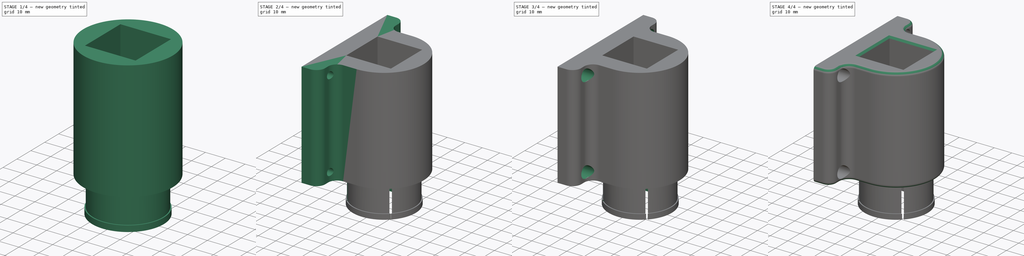
[diagram: build sequence overview — one tinted view per stage of 4, left to right]
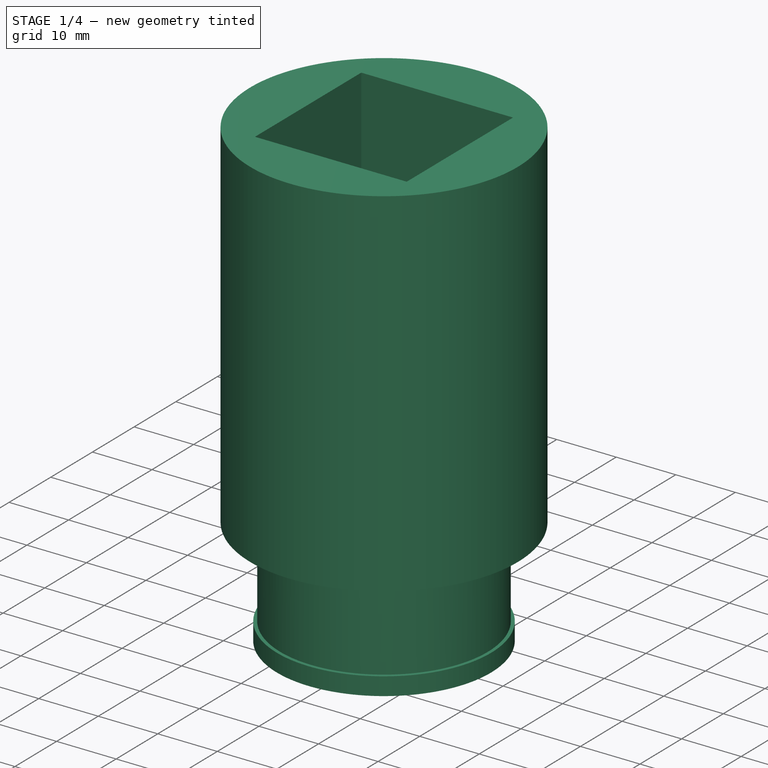
[diagram: stage 1 of 4 — iso view after this stage's code; geometry added in this stage tinted green]
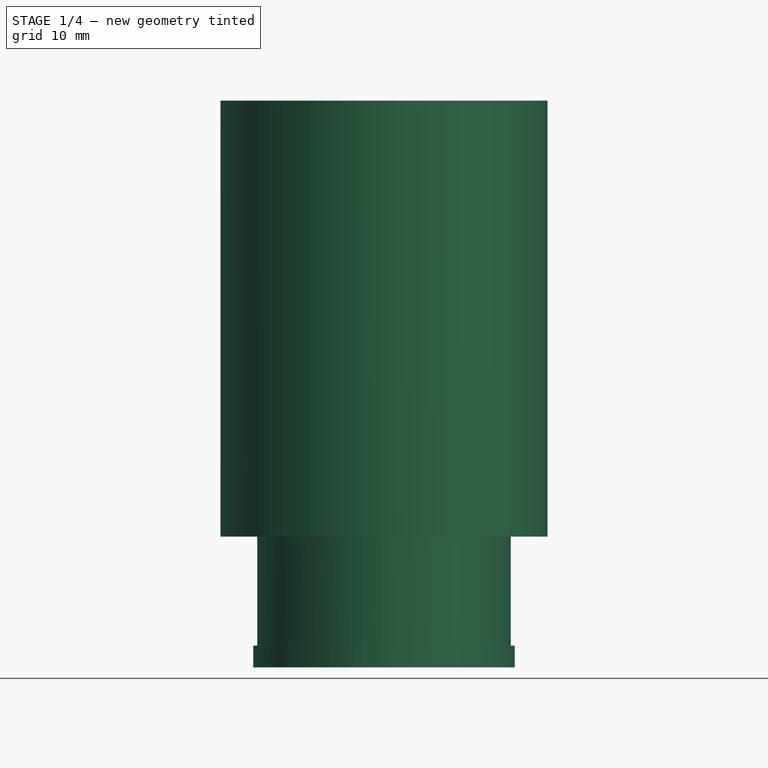
[diagram: stage 1 of 4 — front view after this stage's code; geometry added in this stage tinted green]
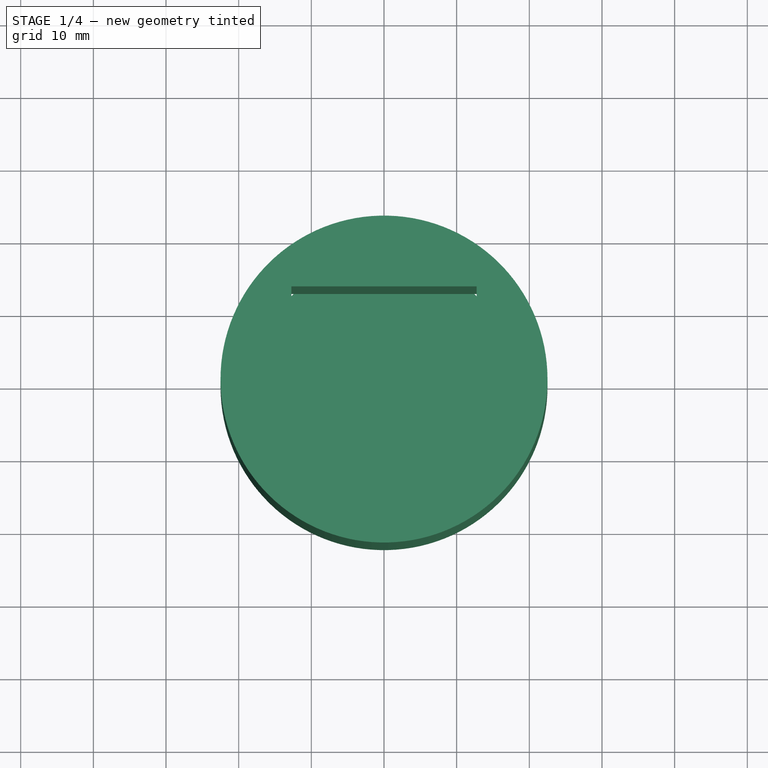
[diagram: stage 1 of 4 — top view after this stage's code; geometry added in this stage tinted green]
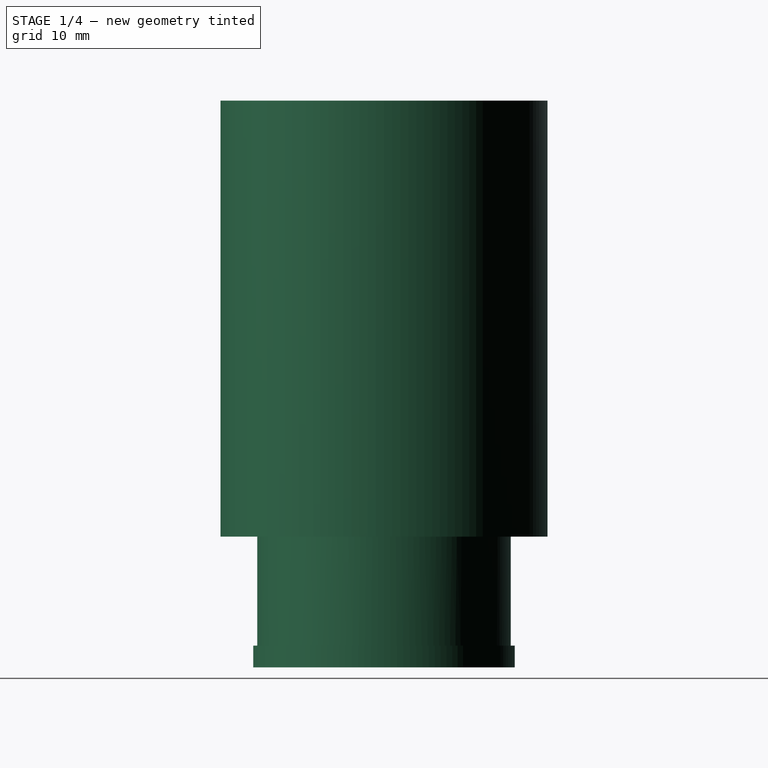
[diagram: stage 1 of 4 — right view after this stage's code; geometry added in this stage tinted green]
FCSTD DOCUMENT  (FreeCAD 0.20R29603 (Git))
Label: Deichselstütze 2.0 Stützenklemme
License: All rights reserved
LicenseURL: http://en.wikipedia.org/wiki/All_rights_reserved
objects: Sketcher::SketchObject×8, PartDesign::Pad×4, PartDesign::Pocket×3, PartDesign::Hole×2, PartDesign::Fillet×2, PartDesign::Chamfer×1, PartDesign::Body×1
note: 33 computed .brp shape members not serialized (recipe doc carries the construction recipe); baked Part::Feature solids carry a one-line shape summary decoded from their .brp

FEATURE [Sketcher::SketchObject] Sketch
  FullyConstrained = true
  MapMode = 5
  Support = -> [XY_Plane]
  sketch-geometry (6):
    g0: Circle CenterX=0 CenterY=0 CenterZ=0 NormalX=0 NormalY=0 NormalZ=1 AngleXU=0 Radius=22.5
    g1: LineSegment StartX=-12.75 StartY=12.75 StartZ=0 EndX=-12.75 EndY=-12.75 EndZ=0
    g2: LineSegment StartX=-12.75 StartY=-12.75 StartZ=0 EndX=12.75 EndY=-12.75 EndZ=0
    g3: LineSegment StartX=12.75 StartY=-12.75 StartZ=0 EndX=12.75 EndY=12.75 EndZ=0
    g4: LineSegment StartX=12.75 StartY=12.75 StartZ=0 EndX=-12.75 EndY=12.75 EndZ=0
    g5: GeomPoint X=0 Y=0 Z=0
  constraints (14):
    c: Coincident(g0,g-1)
    c: Coincident(g1,g2)
    c: Coincident(g2,g3)
    c: Coincident(g3,g4)
    c: Coincident(g4,g1)
    c: Horizontal(g2)
    c: Horizontal(g4)
    c: Vertical(g1)
    c: Vertical(g3)
    c: Symmetric(g2,g1,g5)
    c: Coincident(g5,g0)
    c: Distance(g3) = 25.5
    c: Equal(g3,g2)
    c: Diameter(g0) = 45
FEATURE [PartDesign::Pad] Pad
  Direction = (0,0,1)
  Length = 60
  Length2 = 10
  Profile = -> Sketch
  ReferenceAxis = -> Sketch [N_Axis]
  Type = 0
FEATURE [Sketcher::SketchObject] Sketch001
  FullyConstrained = true
  MapMode = 5
  Placement = pos=(0,0,0) rot=(1,0,0;3.14159rad)
  Support = -> [Pad]
  sketch-geometry (1):
    g0: Circle CenterX=0 CenterY=0 CenterZ=0 NormalX=0 NormalY=0 NormalZ=1 AngleXU=0 Radius=17.45
  constraints (2):
    c: Coincident(g0,g-1)
    c: Diameter(g0) = 34.9
FEATURE [PartDesign::Pad] Pad001
  BaseFeature = -> Pad
  Direction = (0,0,-1)
  Length = 15
  Length2 = 10
  Profile = -> Sketch001
  ReferenceAxis = -> Sketch001 [N_Axis]
  Type = 0
FEATURE [Sketcher::SketchObject] Sketch002
  FullyConstrained = true
  MapMode = 5
  Placement = pos=(0,0,-15) rot=(1,0,0;3.14159rad)
  Support = -> [Pad001]
  sketch-geometry (1):
    g0: Circle CenterX=0 CenterY=0 CenterZ=0 NormalX=0 NormalY=0 NormalZ=1 AngleXU=0 Radius=18
  constraints (2):
    c: Coincident(g0,g-1)
    c: Diameter(g0) = 36
FEATURE [PartDesign::Pad] Pad002
  BaseFeature = -> Pad001
  Direction = (0,0,-1)
  Length = 3
  Length2 = 10
  Profile = -> Sketch002
  ReferenceAxis = -> Sketch002 [N_Axis]
  Type = 0
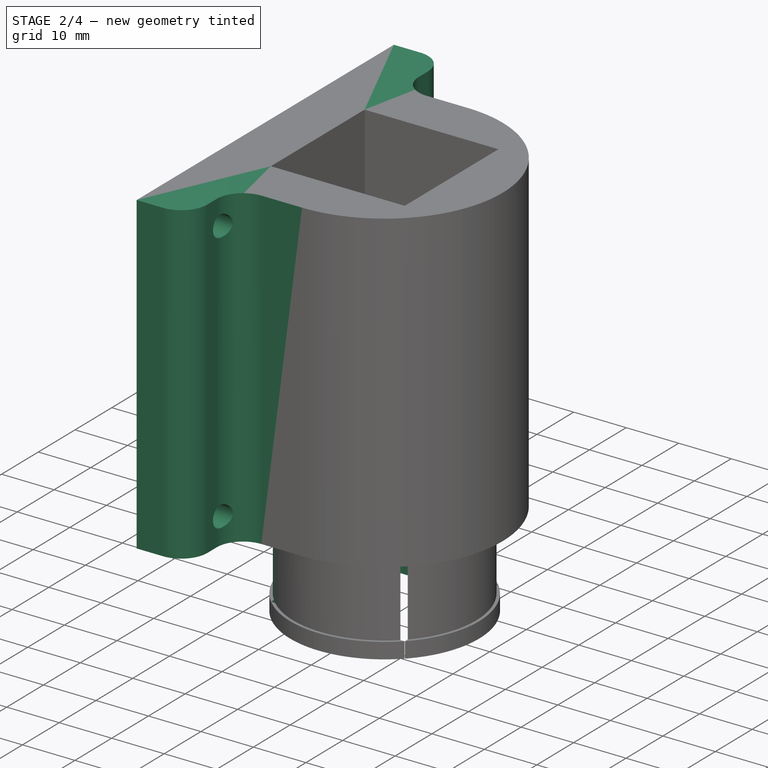
[diagram: stage 2 of 4 — iso view after this stage's code; geometry added in this stage tinted green]
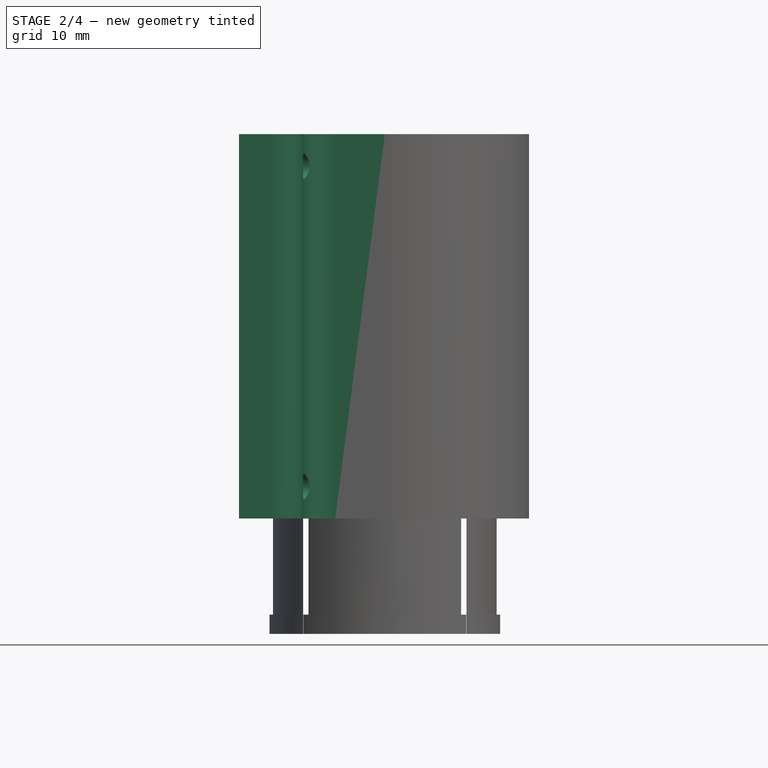
[diagram: stage 2 of 4 — front view after this stage's code; geometry added in this stage tinted green]
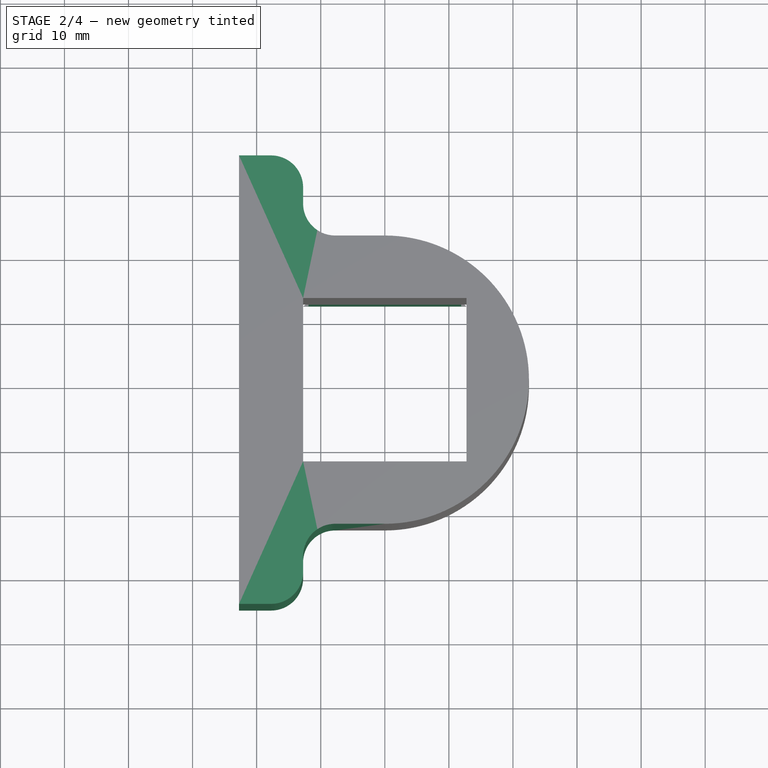
[diagram: stage 2 of 4 — top view after this stage's code; geometry added in this stage tinted green]
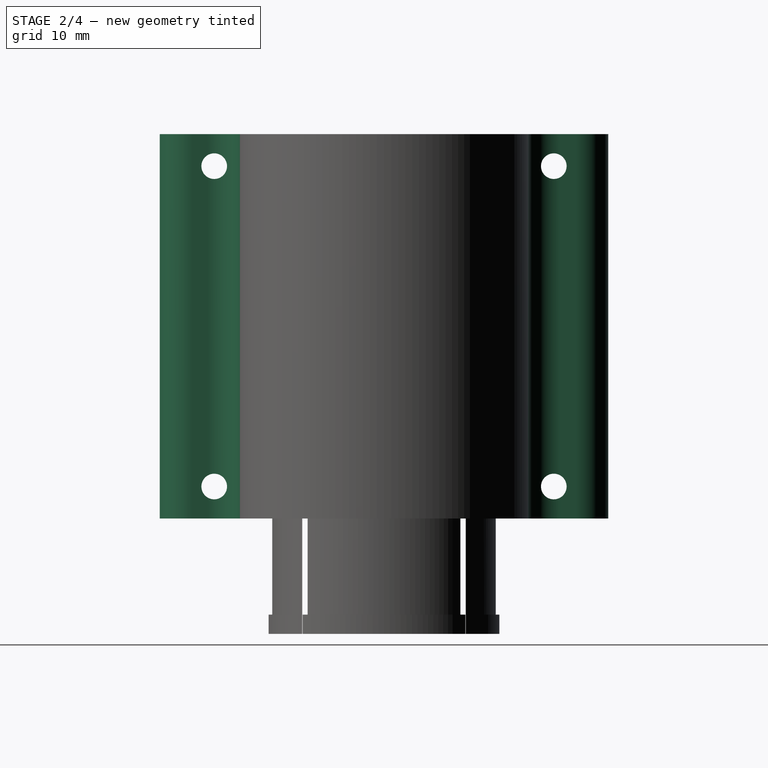
[diagram: stage 2 of 4 — right view after this stage's code; geometry added in this stage tinted green]
FEATURE [Sketcher::SketchObject] Sketch003
  ExternalGeometry = -> [Pad002]
  FullyConstrained = true
  MapMode = 5
  Placement = pos=(0,0,-18) rot=(1,0,0;3.14159rad)
  Support = -> [Pad002]
  sketch-geometry (5):
    g0: LineSegment StartX=-12.75 StartY=12.75 StartZ=0 EndX=-12.75 EndY=-12.75 EndZ=0
    g1: LineSegment StartX=-12.75 StartY=-12.75 StartZ=0 EndX=12.75 EndY=-12.75 EndZ=0
    g2: LineSegment StartX=12.75 StartY=-12.75 StartZ=0 EndX=12.75 EndY=12.75 EndZ=0
    g3: LineSegment StartX=12.75 StartY=12.75 StartZ=0 EndX=-12.75 EndY=12.75 EndZ=0
    g4: GeomPoint X=0 Y=0 Z=0
  constraints (12):
    c: Coincident(g0,g1)
    c: Coincident(g1,g2)
    c: Coincident(g2,g3)
    c: Coincident(g3,g0)
    c: Horizontal(g1)
    c: Horizontal(g3)
    c: Vertical(g0)
    c: Vertical(g2)
    c: Symmetric(g1,g0,g4)
    c: Coincident(g4,g-1)
    c: Distance(g2) = 25.5
    c: Equal(g1,g2)
FEATURE [PartDesign::Pocket] Pocket
  BaseFeature = -> Pad002
  Direction = (0,0,1)
  Length = 5
  Length2 = 5
  Profile = -> Sketch003
  ReferenceAxis = -> Sketch003 [N_Axis]
  Type = 1
FEATURE [Sketcher::SketchObject] Sketch005
  FullyConstrained = true
  MapMode = 5
  Placement = pos=(0,0,60) rot=(0,0,1;0rad)
  sketch-geometry (20):
    g0: LineSegment StartX=0 StartY=12.75 StartZ=0 EndX=0 EndY=22.5 EndZ=0
    g1: LineSegment StartX=0 StartY=22.5 StartZ=0 EndX=-7.75 EndY=22.5 EndZ=0
    g2: LineSegment StartX=-12.75 StartY=27.5 StartZ=0 EndX=-12.75 EndY=30 EndZ=0
    g3: LineSegment StartX=-17.75 StartY=35 StartZ=0 EndX=-22.75 EndY=35 EndZ=0
    g4: LineSegment StartX=-22.75 StartY=35 StartZ=0 EndX=-22.75 EndY=-35 EndZ=0
    g5: LineSegment StartX=-22.75 StartY=-35 StartZ=0 EndX=-17.75 EndY=-35 EndZ=0
    g6: LineSegment StartX=-12.75 StartY=-30 StartZ=0 EndX=-12.75 EndY=-27.5 EndZ=0
    g7: LineSegment StartX=-7.75 StartY=-22.5 StartZ=0 EndX=0 EndY=-22.5 EndZ=0
    g8: LineSegment StartX=0 StartY=-22.5 StartZ=0 EndX=0 EndY=-12.75 EndZ=0
    g9: LineSegment StartX=0 StartY=-12.75 StartZ=0 EndX=-12.75 EndY=-12.75 EndZ=0
    g10: LineSegment StartX=-12.75 StartY=-12.75 StartZ=0 EndX=-12.75 EndY=12.75 EndZ=0
    g11: LineSegment StartX=-12.75 StartY=12.75 StartZ=0 EndX=0 EndY=12.75 EndZ=0
    g12: ArcOfCircle CenterX=-7.75 CenterY=27.5 CenterZ=0 NormalX=0 NormalY=0 NormalZ=1 AngleXU=0 Radius=5 StartAngle=3.14159 EndAngle=4.71239
    g13: GeomPoint X=-12.75 Y=22.5 Z=0
    g14: ArcOfCircle CenterX=-7.75 CenterY=-27.5 CenterZ=0 NormalX=0 NormalY=0 NormalZ=1 AngleXU=0 Radius=5 StartAngle=1.5708 EndAngle=3.14159
    g15: GeomPoint X=-12.75 Y=-22.5 Z=0
    g16: ArcOfCircle CenterX=-17.75 CenterY=-30 CenterZ=0 NormalX=0 NormalY=0 NormalZ=1 AngleXU=0 Radius=5 StartAngle=4.71239 EndAngle=6.28319
    g17: GeomPoint X=-12.75 Y=-35 Z=0
    g18: ArcOfCircle CenterX=-17.75 CenterY=30 CenterZ=0 NormalX=0 NormalY=0 NormalZ=1 AngleXU=0 Radius=5 StartAngle=3e-16 EndAngle=1.5708
    g19: GeomPoint X=-12.75 Y=35 Z=0
  constraints (49):
    c: PointOnObject(g0,g-2)
    c: PointOnObject(g0,g-2)
    c: Coincident(g0,g1)
    c: Horizontal(g1)
    c: Horizontal(g3)
    c: Coincident(g3,g4)
    c: Coincident(g4,g5)
    c: Horizontal(g5)
    c: Coincident(g7,g8)
    c: Vertical(g8)
    c: Coincident(g8,g9)
    c: Horizontal(g9)
    c: Coincident(g9,g10)
    c: Coincident(g10,g11)
    c: Coincident(g11,g0)
    c: Horizontal(g11)
    c: Parallel(g7,g1)
    c: Distance(g7,g15) = 12.75
    c: Parallel(g2,g4)
    c: Parallel(g4,g6)
    c: Symmetric(g3,g4,g-1)
    c: Distance(g4) = 70
    c: PointOnObject(g13,g1)
    c: PointOnObject(g13,g2)
    c: Tangent(g1,g12) = 1.5708
    c: Tangent(g2,g12) = 1.5708
    c: PointOnObject(g15,g6)
    c: PointOnObject(g15,g7)
    c: Tangent(g6,g14) = 1.5708
    c: Tangent(g7,g14) = 1.5708
    c: PointOnObject(g17,g5)
    c: PointOnObject(g17,g6)
    c: Tangent(g5,g16) = -1.5708
    c: Tangent(g6,g16) = -1.5708
    c: PointOnObject(g19,g2)
    c: PointOnObject(g19,g3)
    c: Tangent(g2,g18) = -1.5708
    c: Tangent(g3,g18) = -1.5708
    c: Equal(g12,g14)
    c: Radius(g12) = 5
    c: Equal(g18,g16)
    c: Radius(g18) = 5
    c: Equal(g7,g1)
    c: Distance(g10) = 25.5
    c: Distance(g9) = 12.75
    c: Symmetric(g9,g10,g-1)
    c: Distance(g9,g4) = 10
    c: Distance(g0) = 9.75
    c: Symmetric(g7,g0,g-1)
FEATURE [PartDesign::Pad] Pad003
  BaseFeature = -> Pocket
  Direction = (0,0,1)
  Length = 60
  Length2 = 10
  Profile = -> Sketch005
  ReferenceAxis = -> Sketch005 [N_Axis]
  Reversed = true
  Type = 0
FEATURE [Sketcher::SketchObject] Sketch006
  ExternalGeometry = -> [Pad003]
  FullyConstrained = true
  MapMode = 5
  Placement = pos=(-22.75,0,0) rot=(0.57735,-0.57735,-0.57735;2.0944rad)
  Support = -> [Pad003]
  sketch-geometry (4):
    g0: Circle CenterX=-26.5 CenterY=55 CenterZ=0 NormalX=0 NormalY=0 NormalZ=1 AngleXU=0 Radius=2
    g1: Circle CenterX=26.5 CenterY=55 CenterZ=0 NormalX=0 NormalY=0 NormalZ=1 AngleXU=0 Radius=2
    g2: Circle CenterX=26.5 CenterY=5 CenterZ=0 NormalX=0 NormalY=0 NormalZ=1 AngleXU=0 Radius=2
    g3: Circle CenterX=-26.5 CenterY=5 CenterZ=0 NormalX=0 NormalY=0 NormalZ=1 AngleXU=0 Radius=2
  constraints (10):
    c: Symmetric(g3,g2,g-2)
    c: Symmetric(g0,g1,g-2)
    c: Distance(g0,g-3) = 8.5
    c: Distance(g3,g-3) = 8.5
    c: Distance(g3,g-5) = 5
    c: Distance(g0,g-4) = 5
    c: Equal(g2,g3)
    c: Equal(g3,g1)
    c: Equal(g1,g0)
    c: Diameter(g1) = 4
FEATURE [PartDesign::Pocket] Pocket001
  BaseFeature = -> Pad003
  Direction = (1,0,0)
  Length = 5
  Length2 = 5
  Profile = -> Sketch006
  ReferenceAxis = -> Sketch006 [N_Axis]
  Refine = true
  Type = 1
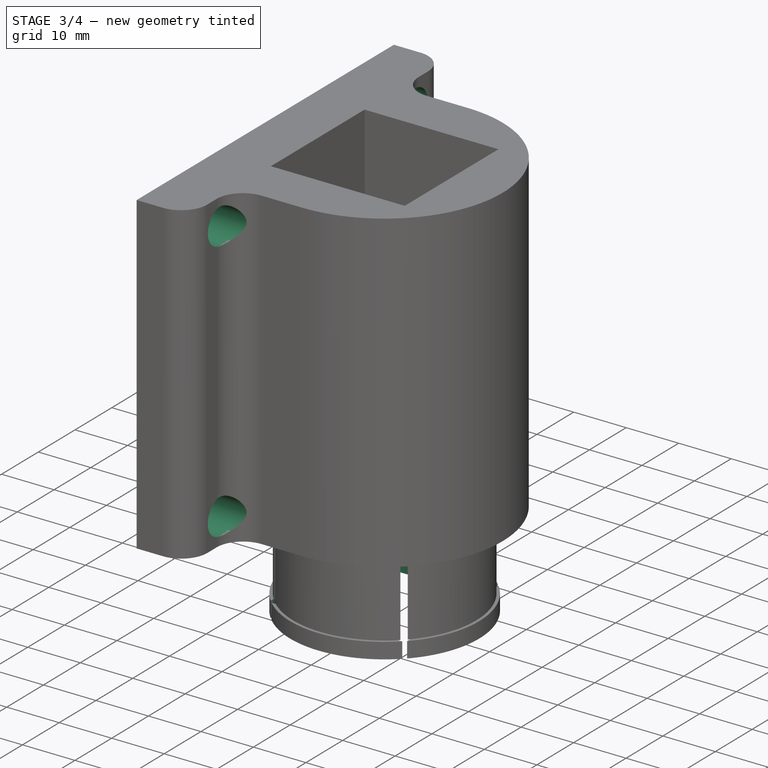
[diagram: stage 3 of 4 — iso view after this stage's code; geometry added in this stage tinted green]
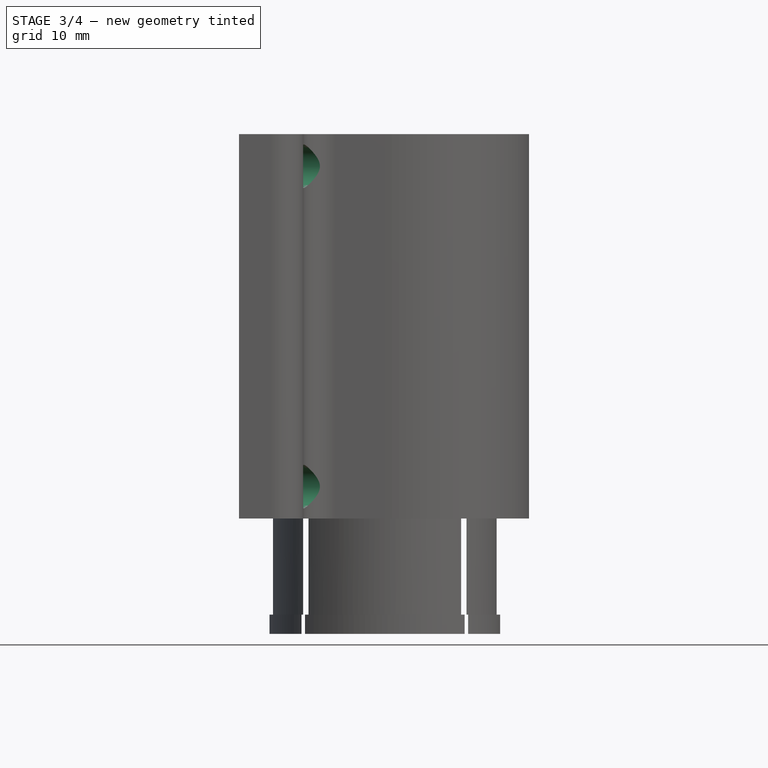
[diagram: stage 3 of 4 — front view after this stage's code; geometry added in this stage tinted green]
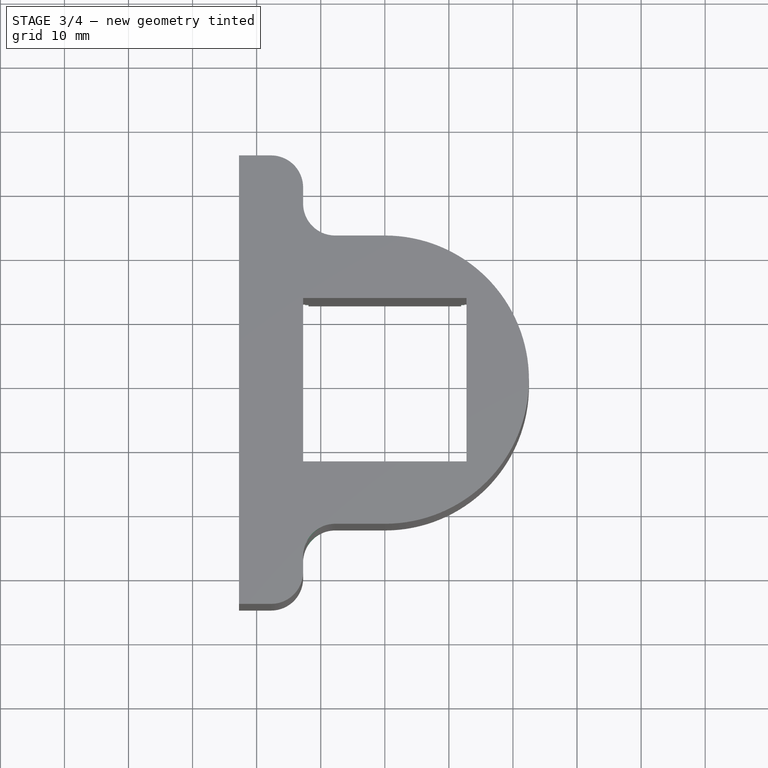
[diagram: stage 3 of 4 — top view after this stage's code; geometry added in this stage tinted green]
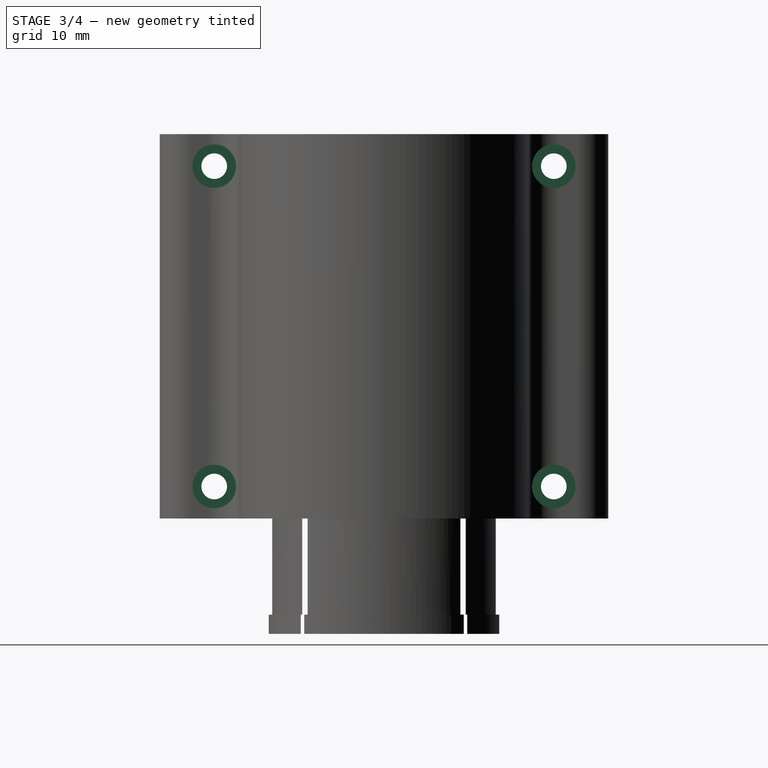
[diagram: stage 3 of 4 — right view after this stage's code; geometry added in this stage tinted green]
FEATURE [Sketcher::SketchObject] Sketch007
  FullyConstrained = true
  MapMode = 5
  Placement = pos=(-12.75,1.81e-14,0) rot=(0.57735,0.57735,0.57735;2.0944rad)
  Support = -> [Pocket001]
  sketch-geometry (8):
    g0: LineSegment StartX=-35 StartY=60 StartZ=0 EndX=35 EndY=60 EndZ=0
    g1: LineSegment StartX=35 StartY=60 StartZ=0 EndX=35 EndY=0 EndZ=0
    g2: LineSegment StartX=35 StartY=0 StartZ=0 EndX=-35 EndY=0 EndZ=0
    g3: LineSegment StartX=-35 StartY=0 StartZ=0 EndX=-35 EndY=60 EndZ=0
    g4: Circle CenterX=-26.5 CenterY=55 CenterZ=0 NormalX=0 NormalY=0 NormalZ=1 AngleXU=0 Radius=4.3
    g5: Circle CenterX=-26.5 CenterY=5 CenterZ=0 NormalX=0 NormalY=0 NormalZ=1 AngleXU=0 Radius=4.3
    g6: Circle CenterX=26.5 CenterY=5 CenterZ=0 NormalX=0 NormalY=0 NormalZ=1 AngleXU=0 Radius=4.3
    g7: Circle CenterX=26.5 CenterY=55 CenterZ=0 NormalX=0 NormalY=0 NormalZ=1 AngleXU=0 Radius=4.3
  constraints (21):
    c: Coincident(g0,g1)
    c: Coincident(g1,g2)
    c: Coincident(g2,g3)
    c: Coincident(g3,g0)
    c: Horizontal(g2)
    c: Vertical(g1)
    c: Vertical(g3)
    c: PointOnObject(g1,g-1)
    c: Distance(g1) = 60
    c: Distance(g0) = 70
    c: Symmetric(g0,g0,g-2)
    c: Symmetric(g7,g4,g-2)
    c: Symmetric(g5,g6,g-2)
    c: Equal(g4,g7)
    c: Equal(g7,g6)
    c: Equal(g6,g5)
    c: Distance(g4,g3) = 8.5
    c: Distance(g4,g0) = 5
    c: Distance(g5,g3) = 8.5
    c: Distance(g5,g2) = 5
    c: Diameter(g7) = 8.6
FEATURE [PartDesign::Hole] Hole
  BaseFeature = -> Pocket001
  CustomThreadClearance = 0
  Depth = 22
  DepthType = 0
  Diameter = 6.8
  DrillForDepth = false
  DrillPoint = 1
  DrillPointAngle = 118
  HoleCutCountersinkAngle = 90
  HoleCutCustomValues = false
  HoleCutDepth = 0
  HoleCutDiameter = 0
  HoleCutType = 0
  ModelThread = false
  Profile = -> Sketch007
  Reversed = true
  Tapered = false
  TaperedAngle = 90
  ThreadClass = 0
  ThreadDepth = 22
  ThreadDepthType = 0
  ThreadDirection = 0
  ThreadFit = 0
  ThreadSize = 0
  ThreadType = 0
  Threaded = false
  UseCustomThreadClearance = false
FEATURE [PartDesign::Hole] Hole001
  BaseFeature = -> Hole
  CustomThreadClearance = 0
  Depth = 25
  DepthType = 0
  Diameter = 4
  DrillForDepth = false
  DrillPoint = 1
  DrillPointAngle = 118
  HoleCutCountersinkAngle = 90
  HoleCutCustomValues = false
  HoleCutDepth = 4.1
  HoleCutDiameter = 6.8
  HoleCutType = 1
  ModelThread = false
  Profile = -> Sketch007
  Tapered = false
  TaperedAngle = 90
  ThreadClass = 0
  ThreadDepth = 25
  ThreadDepthType = 0
  ThreadDirection = 0
  ThreadFit = 0
  ThreadSize = 0
  ThreadType = 0
  Threaded = false
  UseCustomThreadClearance = false
FEATURE [Sketcher::SketchObject] Sketch008
  FullyConstrained = true
  MapMode = 5
  Placement = pos=(0,0,-18) rot=(1,0,0;3.14159rad)
  Support = -> [Hole001]
  sketch-geometry (5):
    g0: LineSegment StartX=-13 StartY=13 StartZ=0 EndX=-13 EndY=-13 EndZ=0
    g1: LineSegment StartX=-13 StartY=-13 StartZ=0 EndX=13 EndY=-13 EndZ=0
    g2: LineSegment StartX=13 StartY=-13 StartZ=0 EndX=13 EndY=13 EndZ=0
    g3: LineSegment StartX=13 StartY=13 StartZ=0 EndX=-13 EndY=13 EndZ=0
    g4: GeomPoint X=0 Y=0 Z=0
  constraints (12):
    c: Coincident(g0,g1)
    c: Coincident(g1,g2)
    c: Coincident(g2,g3)
    c: Coincident(g3,g0)
    c: Horizontal(g1)
    c: Horizontal(g3)
    c: Vertical(g0)
    c: Vertical(g2)
    c: Symmetric(g1,g0,g4)
    c: Coincident(g4,g-1)
    c: Equal(g2,g3)
    c: Distance(g3) = 26
FEATURE [PartDesign::Pocket] Pocket002
  BaseFeature = -> Hole001
  Direction = (0,0,1)
  Length = 3
  Length2 = 5
  Profile = -> Sketch008
  ReferenceAxis = -> Sketch008 [N_Axis]
  Type = 0
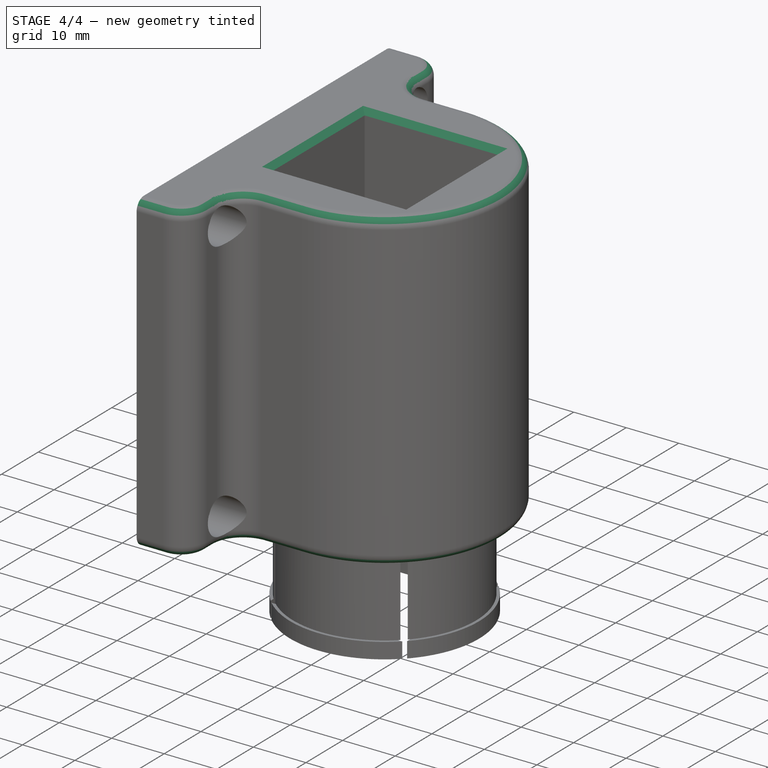
[diagram: stage 4 of 4 — iso view after this stage's code; geometry added in this stage tinted green]
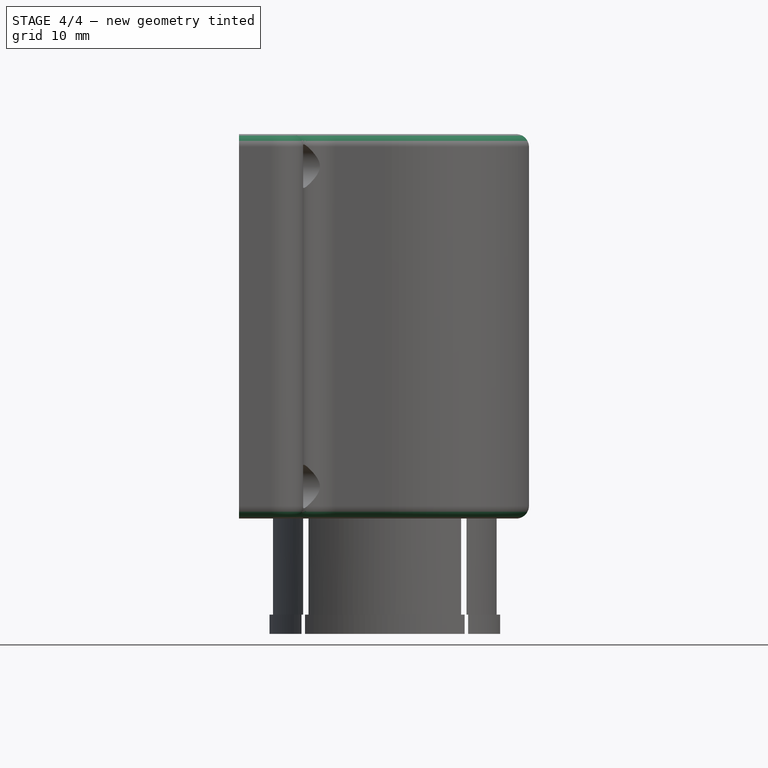
[diagram: stage 4 of 4 — front view after this stage's code; geometry added in this stage tinted green]
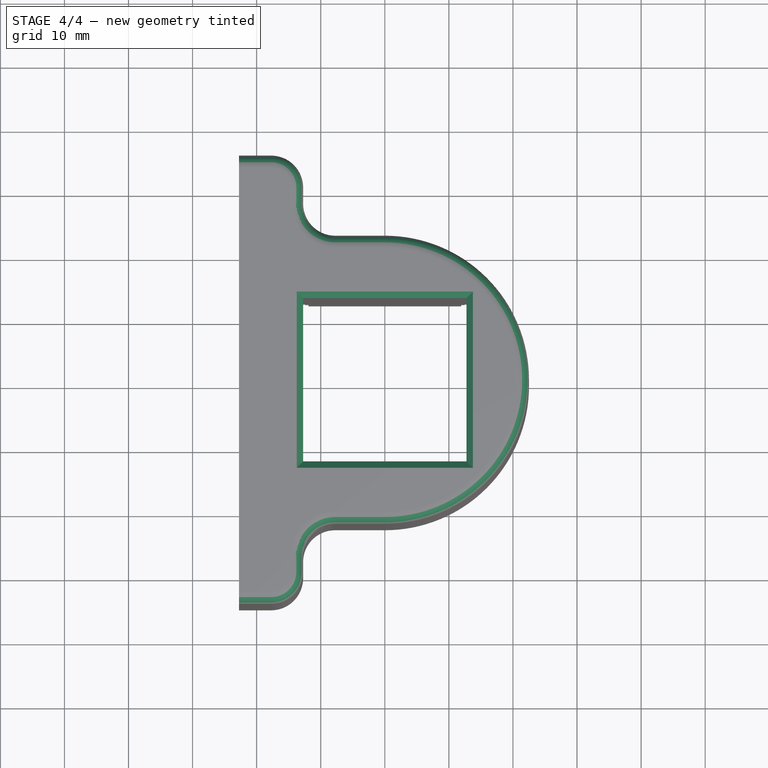
[diagram: stage 4 of 4 — top view after this stage's code; geometry added in this stage tinted green]
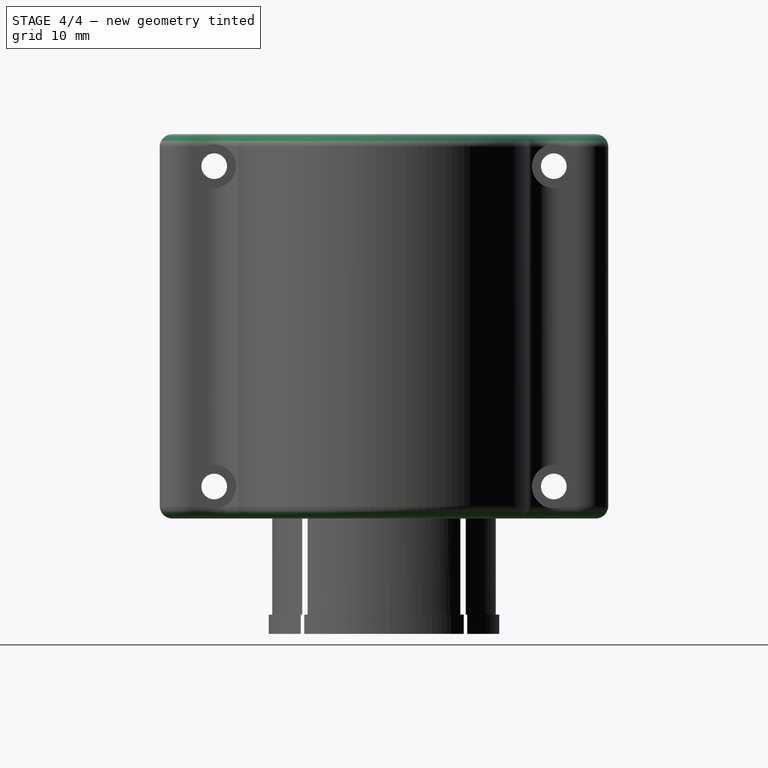
[diagram: stage 4 of 4 — right view after this stage's code; geometry added in this stage tinted green]
FEATURE [PartDesign::Fillet] Fillet
  Base = -> Pocket002 [Edge23,Edge24,Edge26,Edge27,Edge8,Edge9,Edge10,Edge3,Edge19,Edge20,Edge21]
  BaseFeature = -> Pocket002
  Radius = 2
  SupportTransform = false
  UseAllEdges = false
FEATURE [PartDesign::Fillet] Fillet001
  Base = -> Fillet [Edge17,Edge16,Edge15,Edge14,Edge13,Edge8,Edge6,Edge3,Edge22,Edge20,Edge19,Edge21]
  BaseFeature = -> Fillet
  Radius = 2
  SupportTransform = false
  UseAllEdges = false
FEATURE [PartDesign::Chamfer] Chamfer
  Angle = 45
  Base = -> Fillet001 [Edge79,Edge80,Edge81,Edge82]
  BaseFeature = -> Fillet001
  ChamferType = 0
  FlipDirection = false
  Size = 1
  Size2 = 1
  SupportTransform = false
  UseAllEdges = false
FEATURE [PartDesign::Body] Body
  Group = -> [Sketch,Pad,Sketch001,Pad001,Sketch002,Pad002,Sketch003,Pocket,Sketch005,Pad003,Sketch006,Pocket001,Sketch007,Hole,Hole001,Sketch008,Pocket002,Fillet,Fillet001,Chamfer]
  Origin = -> Origin
  Tip = -> Chamfer
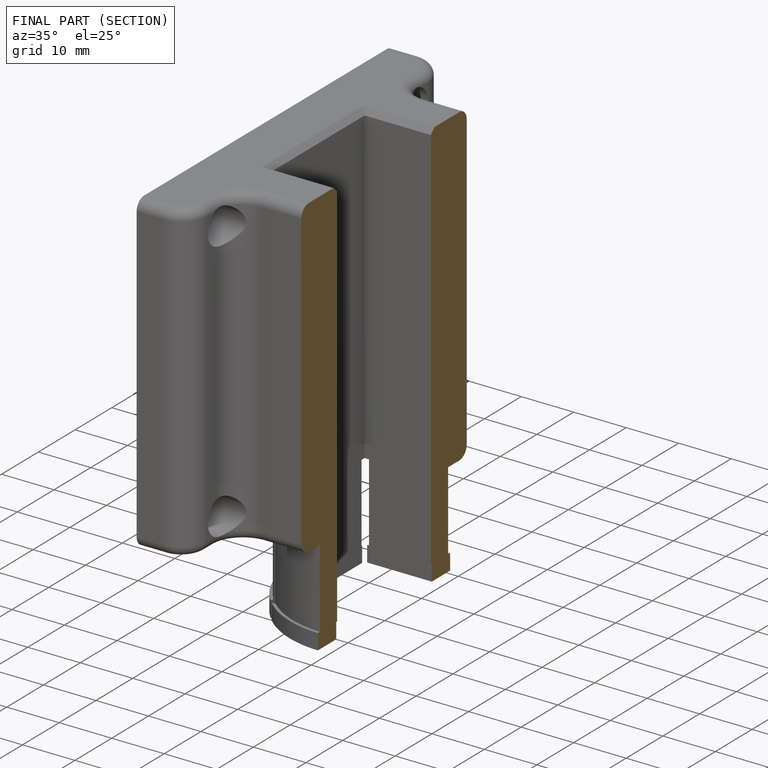
[diagram: finished part — half-section view (interior)]
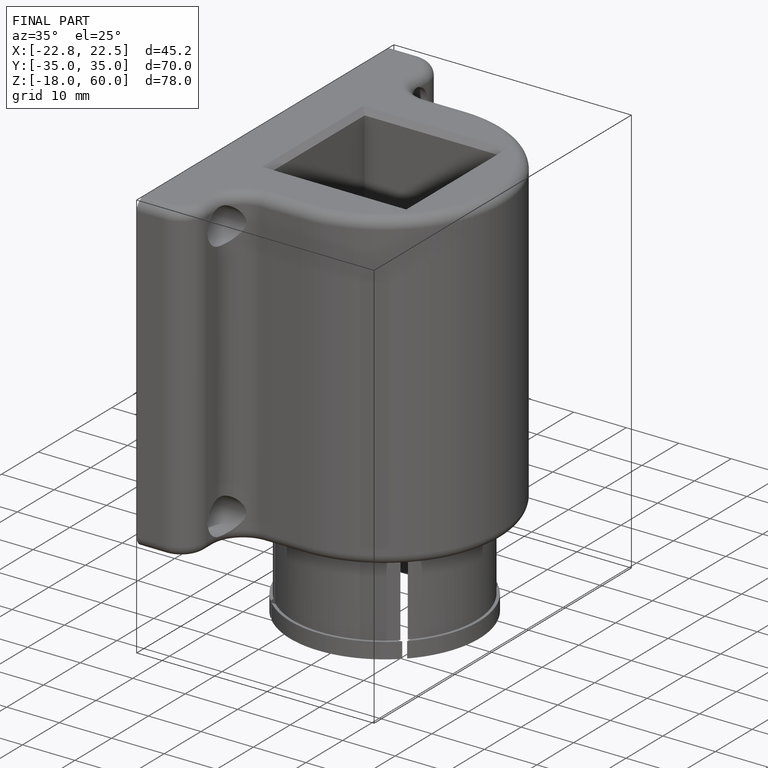
[diagram: finished part — iso view with bounding-box wireframe]
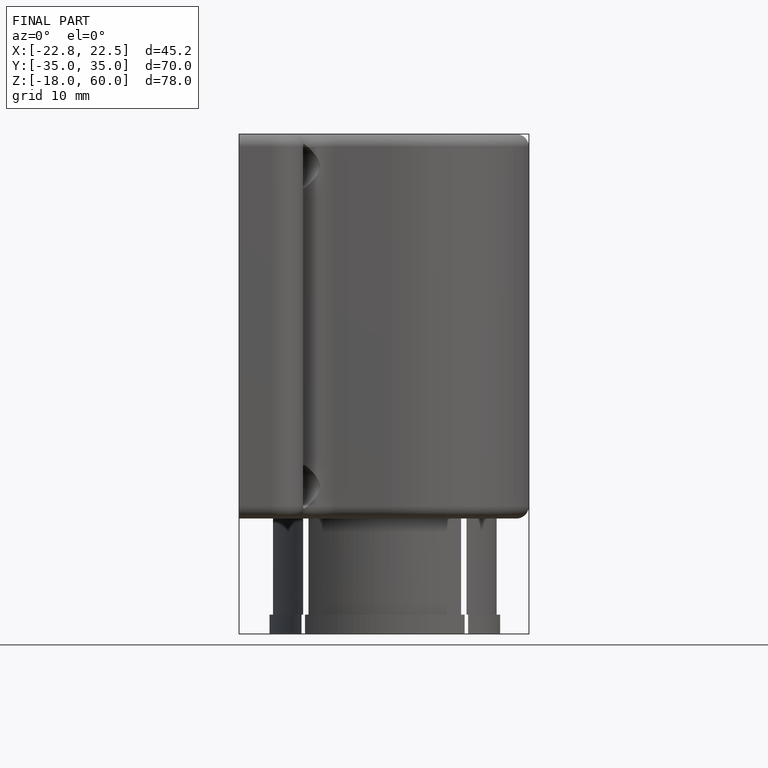
[diagram: finished part — front view with bounding-box wireframe]
